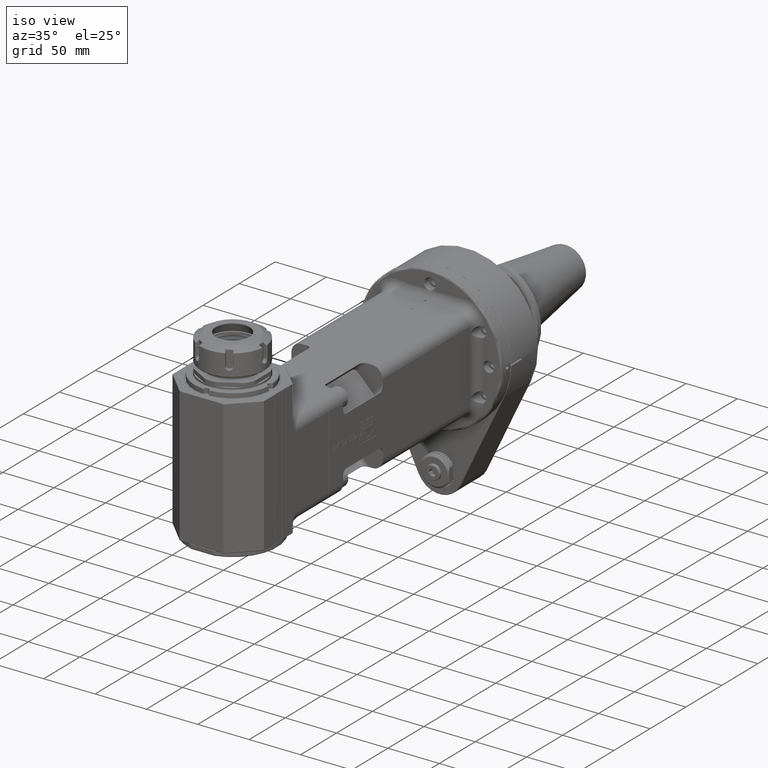
[diagram: clean part render]
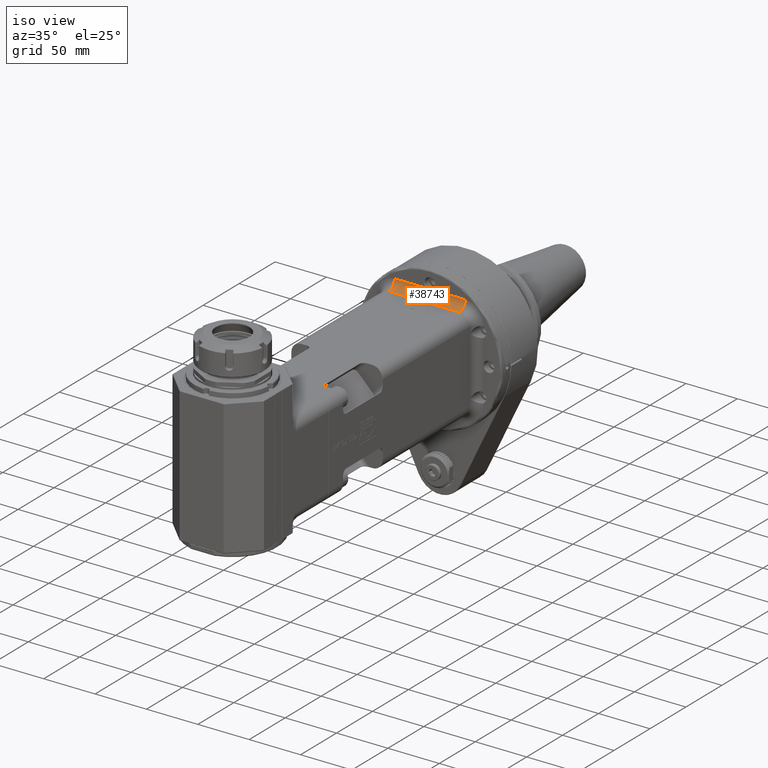
[diagram: same view with one face highlighted and labeled with its STEP entity id]
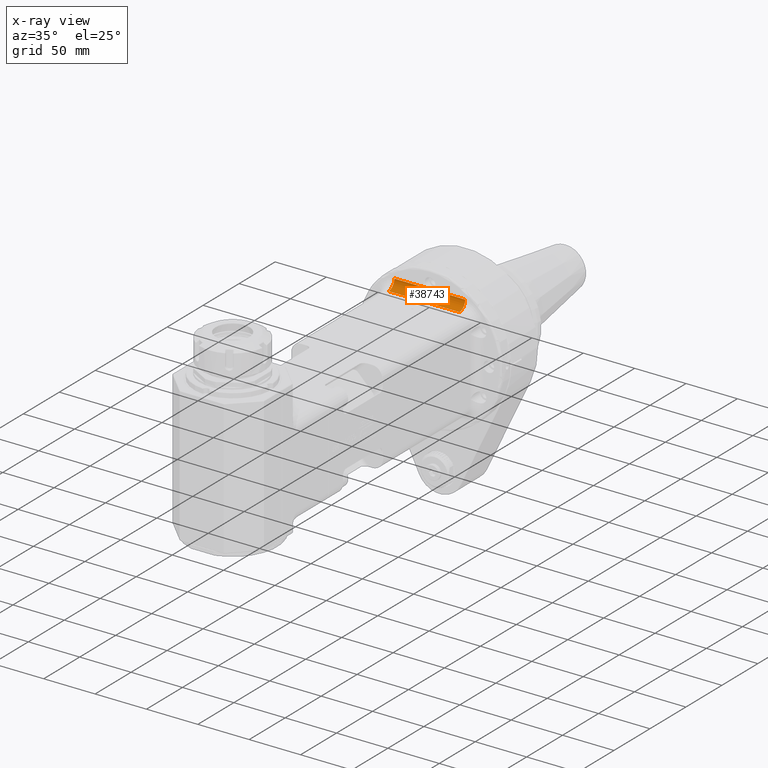
[diagram: x-ray of the same camera — body ghosted, the highlighted face saturated]
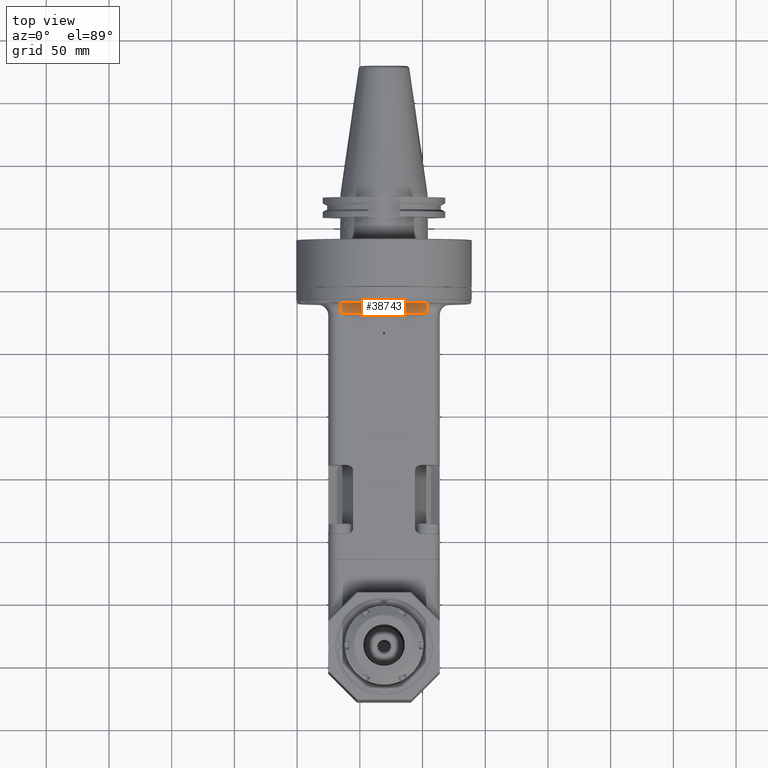
[diagram: same view with one face highlighted and labeled with its STEP entity id]
A machine part, iso view. The second image highlights one B-rep face of the part: STEP entity #38743.
The next image is the same camera in x-ray: the body ghosted, the highlighted face saturated — about 0% of this face is hidden behind the body in this view.
A second angle (top view) of the same face is appended — the face is thin or edge-on in the first view.
In plain terms, the highlighted cylindrical surface (edge-blend (fillet) strip) has radius 8 mm, axis along (-1, -0, 0).
Its self-contained STEP definition (entity closure, byte-faithful):
#885=B_SPLINE_CURVE_WITH_KNOTS('',3,(#58177,#58178,#58179,#58180,#58181,
#58182,#58183,#58184,#58185,#58186,#58187,#58188,#58189,#58190,#58191,#58192,
#58193,#58194,#58195,#58196,#58197,#58198,#58199,#58200,#58201,#58202,#58203,
#58204,#58205,#58206,#58207,#58208,#58209,#58210),.UNSPECIFIED.,.T.,.F.,
(4,2,2,2,2,2,2,2,2,2,2,2,2,2,2,2,4),(-0.613546968405203,-0.575828104787911,
-0.53810924117062,-0.498565559258246,-0.459021877345871,-0.420499032715813,
-0.381976188085756,-0.344374836144179,-0.306773484202602,-0.269172132261024,
-0.231570780319447,-0.193047935689389,-0.154525091059332,-0.114981409146957,
-0.0754377272345824,-0.0377188636172912,0.),.UNSPECIFIED.);
#886=B_SPLINE_CURVE_WITH_KNOTS('',3,(#58212,#58213,#58214,#58215,#58216,
#58217,#58218,#58219,#58220,#58221,#58222,#58223,#58224,#58225,#58226,#58227,
#58228,#58229,#58230,#58231,#58232,#58233,#58234,#58235,#58236,#58237,#58238),
 .UNSPECIFIED.,.F.,.F.,(4,1,1,1,1,1,1,1,1,1,1,1,1,1,1,1,1,1,1,1,1,1,1,1,
4),(0.,0.04166666666667,0.08333333333333,0.125,0.1666666666667,0.2083333333333,
0.25,0.2916666666667,0.3333333333333,0.375,0.4166666666667,0.4583333333333,
0.5,0.5416666666667,0.5833333333333,0.625,0.6666666666667,0.7083333333333,
0.75,0.7916666666667,0.8333333333333,0.875,0.9166666666667,0.9583333333333,
1.),.UNSPECIFIED.);
#2175=LINE('',#57649,#5207);
#2194=LINE('',#57863,#5226);
#2205=LINE('',#57910,#5237);
#5207=VECTOR('',#45886,68.99999999232);
#5226=VECTOR('',#45935,30.92054500248);
#5237=VECTOR('',#45972,30.92054502845);
#8220=CYLINDRICAL_SURFACE('',#41430,8.);
#8771=FACE_BOUND('',#11573,.T.);
#9127=FACE_OUTER_BOUND('',#11572,.T.);
#11572=EDGE_LOOP('',(#26366,#26367,#26368,#26369,#26370,#26371));
#11573=EDGE_LOOP('',(#26372));
#14210=CIRCLE('',#41339,8.);
#14273=CIRCLE('',#41431,8.);
#16110=VERTEX_POINT('',#57646);
#16111=VERTEX_POINT('',#57648);
#16130=VERTEX_POINT('',#57853);
#16132=VERTEX_POINT('',#57860);
#16133=VERTEX_POINT('',#57861);
#16156=VERTEX_POINT('',#57908);
#16207=VERTEX_POINT('',#58175);
#20009=EDGE_CURVE('',#16110,#16111,#2175,.T.);
#20036=EDGE_CURVE('',#16130,#16110,#14210,.T.);
#20040=EDGE_CURVE('',#16130,#16133,#2194,.T.);
#20064=EDGE_CURVE('',#16132,#16156,#2205,.T.);
#20138=EDGE_CURVE('',#16207,#16207,#885,.T.);
#20139=EDGE_CURVE('',#16133,#16132,#886,.T.);
#20140=EDGE_CURVE('',#16156,#16111,#14273,.T.);
#26366=ORIENTED_EDGE('',*,*,#20139,.T.);
#26367=ORIENTED_EDGE('',*,*,#20064,.T.);
#26368=ORIENTED_EDGE('',*,*,#20140,.T.);
#26369=ORIENTED_EDGE('',*,*,#20009,.F.);
#26370=ORIENTED_EDGE('',*,*,#20036,.F.);
#26371=ORIENTED_EDGE('',*,*,#20040,.T.);
#26372=ORIENTED_EDGE('',*,*,#20138,.T.);
#38743=ADVANCED_FACE('',(#9127,#8771),#8220,.F.);
#41339=AXIS2_PLACEMENT_3D('',#57855,#45925,#45926);
#41430=AXIS2_PLACEMENT_3D('',#58211,#46141,#46142);
#41431=AXIS2_PLACEMENT_3D('',#58239,#46143,#46144);
#45886=DIRECTION('',(-1.,0.,0.));
#45925=DIRECTION('center_axis',(-1.,0.,0.));
#45926=DIRECTION('ref_axis',(0.,1.,0.));
#45935=DIRECTION('',(-1.,3.766936124513E-13,-6.565982571314E-9));
#45972=DIRECTION('',(-1.,-2.841058036863E-11,7.164943448104E-9));
#46141=DIRECTION('center_axis',(-1.,0.,0.));
#46142=DIRECTION('ref_axis',(0.,1.,0.));
#46143=DIRECTION('center_axis',(-1.,0.,0.));
#46144=DIRECTION('ref_axis',(0.,1.,0.));
#57646=CARTESIAN_POINT('',(34.4999999981478,-21.,44.9999999999995));
#57648=CARTESIAN_POINT('',(-34.4999999993151,-21.,45.0000000000005));
#57649=CARTESIAN_POINT('',(34.49999999506,-21.,45.));
#57853=CARTESIAN_POINT('',(34.5,-13.,53.));
#57855=CARTESIAN_POINT('Origin',(34.5,-21.,53.));
#57860=CARTESIAN_POINT('',(-3.5794549700242,-12.999999999799,52.999999774958));
#57861=CARTESIAN_POINT('',(3.57945499595438,-13.0000000000706,52.9999997945604));
#57863=CARTESIAN_POINT('',(34.49999999654,-13.,52.9999999996));
#57908=CARTESIAN_POINT('',(-34.5,-13.,53.));
#57910=CARTESIAN_POINT('',(-3.579454967294,-12.99999999912,52.99999977758));
#58175=CARTESIAN_POINT('',(1.,-19.,45.25403330759));
#58177=CARTESIAN_POINT('Ctrl Pts',(3.46944695195361E-17,-18.,45.5838015129043));
#58178=CARTESIAN_POINT('Ctrl Pts',(0.125729545390971,-18.,45.5838015129043));
#58179=CARTESIAN_POINT('Ctrl Pts',(0.259035749157047,-18.0251836787524,
45.5734681088504));
#58180=CARTESIAN_POINT('Ctrl Pts',(0.502732510150504,-18.1255707672144,
45.5340396064908));
#58181=CARTESIAN_POINT('Ctrl Pts',(0.613187794301712,-18.2007121427736,
45.5051870492237));
#58182=CARTESIAN_POINT('Ctrl Pts',(0.791458528828117,-18.3755591300314,
45.4421325926038));
#58183=CARTESIAN_POINT('Ctrl Pts',(0.869887227236746,-18.4886901109446,
45.4032735401554));
#58184=CARTESIAN_POINT('Ctrl Pts',(0.974170510068966,-18.7370676391859,
45.325622670676));
#58185=CARTESIAN_POINT('Ctrl Pts',(0.999999999999996,-18.8723733154214,
45.2869863758455));
#58186=CARTESIAN_POINT('Ctrl Pts',(0.999999999999996,-19.1243319464173,
45.2219309370601));
#58187=CARTESIAN_POINT('Ctrl Pts',(0.975359028072174,-19.2580925408013,
45.1909198184615));
#58188=CARTESIAN_POINT('Ctrl Pts',(0.873071535404519,-19.5056511675232,
45.1397903056511));
#58189=CARTESIAN_POINT('Ctrl Pts',(0.795376432454301,-19.6193942524433,
45.119503224205));
#58190=CARTESIAN_POINT('Ctrl Pts',(0.616573118865832,-19.7970829891208,
45.090455138521));
#58191=CARTESIAN_POINT('Ctrl Pts',(0.504596927097034,-19.8735204563001,
45.0795413770109));
#58192=CARTESIAN_POINT('Ctrl Pts',(0.258975266242429,-19.9749809652732,
45.0657730736939));
#58193=CARTESIAN_POINT('Ctrl Pts',(0.125337839805257,-20.,45.0627460668062));
#58194=CARTESIAN_POINT('Ctrl Pts',(-0.125337839805258,-20.,45.0627460668062));
#58195=CARTESIAN_POINT('Ctrl Pts',(-0.258975266242432,-19.9749809652732,
45.0657730736939));
#58196=CARTESIAN_POINT('Ctrl Pts',(-0.504596927097037,-19.8735204563001,
45.0795413770109));
#58197=CARTESIAN_POINT('Ctrl Pts',(-0.616573118865836,-19.7970829891208,
45.090455138521));
#58198=CARTESIAN_POINT('Ctrl Pts',(-0.795376432454305,-19.6193942524433,
45.119503224205));
#58199=CARTESIAN_POINT('Ctrl Pts',(-0.873071535404521,-19.5056511675232,
45.1397903056511));
#58200=CARTESIAN_POINT('Ctrl Pts',(-0.975359028072175,-19.2580925408013,
45.1909198184615));
#58201=CARTESIAN_POINT('Ctrl Pts',(-1.,-19.1243319464173,45.2219309370601));
#58202=CARTESIAN_POINT('Ctrl Pts',(-1.,-18.8723733154214,45.2869863758455));
#58203=CARTESIAN_POINT('Ctrl Pts',(-0.974170510068967,-18.7370676391859,
45.325622670676));
#58204=CARTESIAN_POINT('Ctrl Pts',(-0.869887227236746,-18.4886901109446,
45.4032735401554));
#58205=CARTESIAN_POINT('Ctrl Pts',(-0.791458528828117,-18.3755591300314,
45.4421325926038));
#58206=CARTESIAN_POINT('Ctrl Pts',(-0.613187794301712,-18.2007121427736,
45.5051870492237));
#58207=CARTESIAN_POINT('Ctrl Pts',(-0.502732510150505,-18.1255707672144,
45.5340396064908));
#58208=CARTESIAN_POINT('Ctrl Pts',(-0.259035749157047,-18.0251836787524,
45.5734681088504));
#58209=CARTESIAN_POINT('Ctrl Pts',(-0.125729545390971,-18.,45.5838015129043));
#58210=CARTESIAN_POINT('Ctrl Pts',(-2.08166817117217E-16,-18.,45.5838015129043));
#58211=CARTESIAN_POINT('Origin',(34.98674551411,-21.,53.));
#58212=CARTESIAN_POINT('Ctrl Pts',(3.579454994064,-12.99999999999,52.99999979657));
#58213=CARTESIAN_POINT('Ctrl Pts',(3.497069458872,-12.99999999999,52.93832237794));
#58214=CARTESIAN_POINT('Ctrl Pts',(3.328978845301,-13.00142450756,52.81924647829));
#58215=CARTESIAN_POINT('Ctrl Pts',(3.066448555063,-13.00697597131,52.65361995215));
#58216=CARTESIAN_POINT('Ctrl Pts',(2.794141667383,-13.01509194456,52.50172068166));
#58217=CARTESIAN_POINT('Ctrl Pts',(2.511154961973,-13.02500630023,52.36341327559));
#58218=CARTESIAN_POINT('Ctrl Pts',(2.218197795487,-13.03595055594,52.23940902317));
#58219=CARTESIAN_POINT('Ctrl Pts',(1.914966944219,-13.04724252416,52.12986033094));
#58220=CARTESIAN_POINT('Ctrl Pts',(1.603600031252,-13.05815149393,52.03588345209));
#58221=CARTESIAN_POINT('Ctrl Pts',(1.286531648117,-13.06800464883,51.95833918326));
#58222=CARTESIAN_POINT('Ctrl Pts',(0.9652047631457,-13.07625201607,51.89767525077));
#58223=CARTESIAN_POINT('Ctrl Pts',(0.6431266234453,-13.08241996691,51.85443661166));
#58224=CARTESIAN_POINT('Ctrl Pts',(0.3211053015238,-13.08623255663,51.82851817779));
#58225=CARTESIAN_POINT('Ctrl Pts',(-0.0002064691748639,-13.08752013281,
51.81989600372));
#58226=CARTESIAN_POINT('Ctrl Pts',(-0.3205487468791,-13.08624723521,51.8284197883));
#58227=CARTESIAN_POINT('Ctrl Pts',(-0.6409744323232,-13.08246776717,51.85410885094));
#58228=CARTESIAN_POINT('Ctrl Pts',(-0.9617021511567,-13.07632711125,51.89713800085));
#58229=CARTESIAN_POINT('Ctrl Pts',(-1.282779175076,-13.06808163903,51.95775223926));
#58230=CARTESIAN_POINT('Ctrl Pts',(-1.600715898125,-13.05820504638,52.03543560045));
#58231=CARTESIAN_POINT('Ctrl Pts',(-1.91370130869,-13.0472545144,52.12973455242));
#58232=CARTESIAN_POINT('Ctrl Pts',(-2.21840084395,-13.0359331636,52.23958890477));
#58233=CARTESIAN_POINT('Ctrl Pts',(-2.511128425941,-13.02502395186,52.36323894807));
#58234=CARTESIAN_POINT('Ctrl Pts',(-2.792849677345,-13.01516024587,52.50071041461));
#58235=CARTESIAN_POINT('Ctrl Pts',(-3.064045978264,-13.00705547072,52.65187950323));
#58236=CARTESIAN_POINT('Ctrl Pts',(-3.326450605711,-13.0014617802,52.81740316702));
#58237=CARTESIAN_POINT('Ctrl Pts',(-3.496027886527,-12.99999999912,52.93754261526));
#58238=CARTESIAN_POINT('Ctrl Pts',(-3.579454967294,-12.99999999912,52.99999977758));
#58239=CARTESIAN_POINT('Origin',(-34.5,-21.,53.));